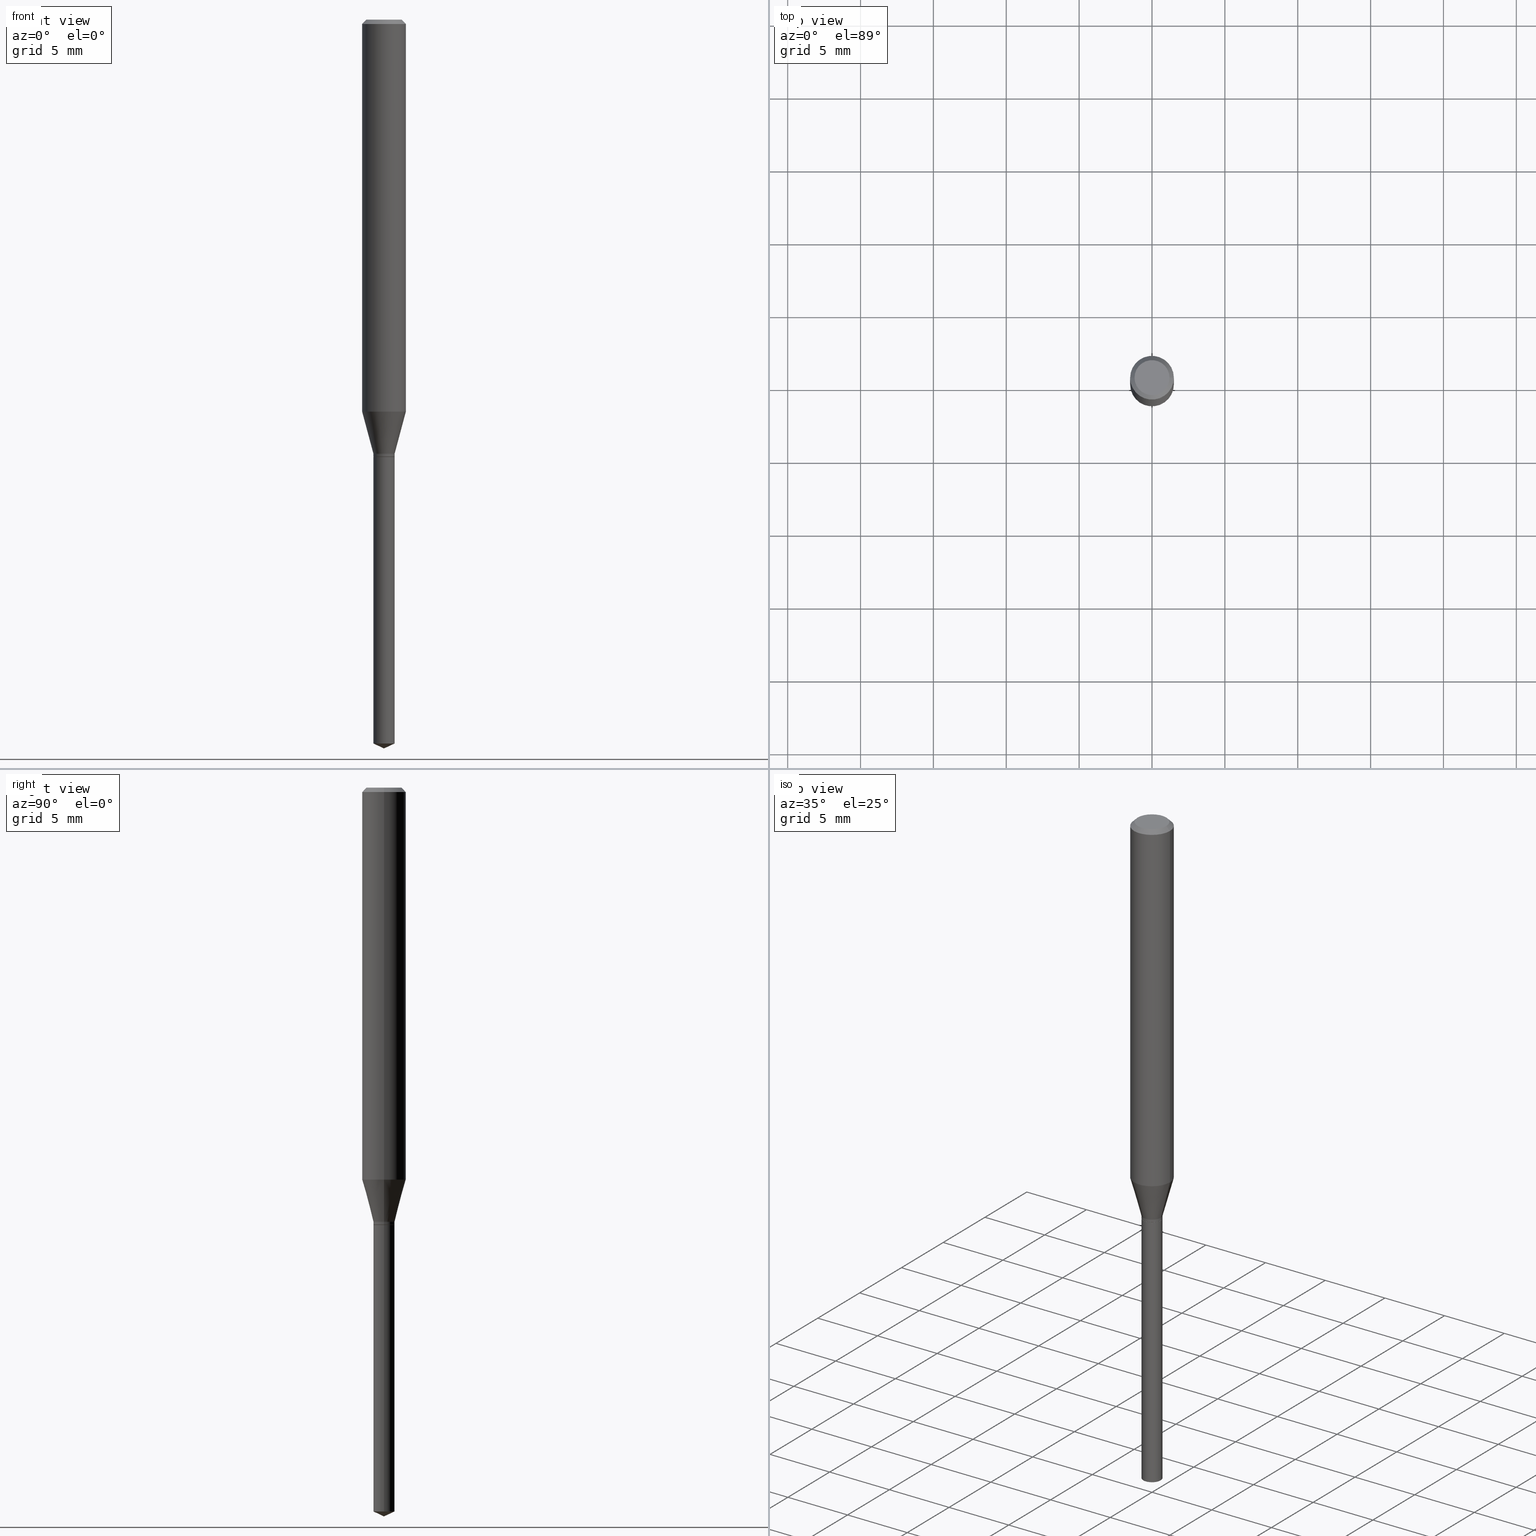
[diagram: canonical four-view strip — front | top / right | iso, engineering-drawing reading convention]
A machine part, canonical four-view strip (front | top / right | iso — engineering-drawing reading convention). The complete STEP part file that produces these views, byte-faithful:
ISO-10303-21;
HEADER;
FILE_DESCRIPTION (( 'STEP AP203' ),
    '1' );
FILE_NAME ('08348.STEP',
    '2024-04-24T14:30:05',
    ( '' ),
    ( '' ),
    'SwSTEP 2.0',
    'SolidWorks 2023',
    '' );
FILE_SCHEMA (( 'CONFIG_CONTROL_DESIGN' ));
ENDSEC;

DATA;
#1 = AXIS2_PLACEMENT_3D ( 'NONE', #105, #481, #332 ) ;
#2 = CYLINDRICAL_SURFACE ( 'NONE', #411, 0.02855000000000000593 ) ;
#3 = ORIENTED_EDGE ( 'NONE', *, *, #9, .T. ) ;
#4 = APPROVAL_ROLE ( '' ) ;
#5 = CARTESIAN_POINT ( 'NONE',  ( 2.888098660104664204E-31, -4.123439461173780263E-17, -0.01181000000000007218 ) ) ;
#6 = ORIENTED_EDGE ( 'NONE', *, *, #149, .F. ) ;
#7 = DIRECTION ( 'NONE',  ( 0.9063077870366522681, -4.853149677051413500E-15, 0.4226182617406944453 ) ) ;
#8 = ORIENTED_EDGE ( 'NONE', *, *, #225, .T. ) ;
#9 = EDGE_CURVE ( 'NONE', #285, #289, #73, .T. ) ;
#10 = DIRECTION ( 'NONE',  ( 1.000000000000000000, -6.982962677686259611E-15, 0.000000000000000000 ) ) ;
#11 = APPLICATION_CONTEXT ( 'configuration controlled 3d designs of mechanical parts and assemblies' ) ;
#12 = ORIENTED_EDGE ( 'NONE', *, *, #236, .F. ) ;
#13 = AXIS2_PLACEMENT_3D ( 'NONE', #381, #112, #45 ) ;
#14 =( GEOMETRIC_REPRESENTATION_CONTEXT ( 3 ) GLOBAL_UNCERTAINTY_ASSIGNED_CONTEXT ( ( #135 ) ) GLOBAL_UNIT_ASSIGNED_CONTEXT ( ( #145, #108, #447 ) ) REPRESENTATION_CONTEXT ( 'NONE', 'WORKASPACE' ) );
#15 = ORIENTED_EDGE ( 'NONE', *, *, #366, .F. ) ;
#16 = AXIS2_PLACEMENT_3D ( 'NONE', #408, #444, #331 ) ;
#17 = DIRECTION ( 'NONE',  ( 1.000000000000000000, -6.982962677686266711E-15, 4.876185090822587894E-29 ) ) ;
#18 = ORIENTED_EDGE ( 'NONE', *, *, #256, .F. ) ;
#19 = CARTESIAN_POINT ( 'NONE',  ( -0.02804999999999999508, -3.923577885422241876E-15, -1.181600000000000206 ) ) ;
#20 = ADVANCED_FACE ( 'NONE', ( #210 ), #358, .F. ) ;
#21 = ORIENTED_EDGE ( 'NONE', *, *, #333, .T. ) ;
#22 = EDGE_CURVE ( 'NONE', #282, #216, #187, .T. ) ;
#23 = ORIENTED_EDGE ( 'NONE', *, *, #22, .T. ) ;
#24 = DIRECTION ( 'NONE',  ( -0.7071067811865453523, 2.468850131082234184E-15, -0.7071067811865496822 ) ) ;
#25 = ORIENTED_EDGE ( 'NONE', *, *, #37, .T. ) ;
#26 = CC_DESIGN_PERSON_AND_ORGANIZATION_ASSIGNMENT ( #267, #328, ( #150 ) ) ;
#27 = CYLINDRICAL_SURFACE ( 'NONE', #287, 0.05905000000000006771 ) ;
#28 = AXIS2_PLACEMENT_3D ( 'NONE', #384, #153, #339 ) ;
#29 = EDGE_LOOP ( 'NONE', ( #23, #25, #399, #92 ) ) ;
#30 = CARTESIAN_POINT ( 'NONE',  ( 2.888343206985265437E-29, -4.123788609307639813E-15, -1.181100000000000039 ) ) ;
#31 = DIRECTION ( 'NONE',  ( 1.000000000000000000, -6.982962677686275388E-15, 0.000000000000000000 ) ) ;
#32 = PERSON_AND_ORGANIZATION ( #183, #417 ) ;
#33 = EDGE_CURVE ( 'NONE', #396, #177, #342, .T. ) ;
#34 = APPLICATION_CONTEXT ( 'configuration controlled 3d designs of mechanical parts and assemblies' ) ;
#35 = CARTESIAN_POINT ( 'NONE',  ( 4.815128079378533515E-29, -6.874726756182153211E-15, -1.968999999999999861 ) ) ;
#36 = CC_DESIGN_DATE_AND_TIME_ASSIGNMENT ( #482, #147, ( #440 ) ) ;
#37 = EDGE_CURVE ( 'NONE', #216, #285, #455, .T. ) ;
#38 = FACE_OUTER_BOUND ( 'NONE', #164, .T. ) ;
#39 = DIRECTION ( 'NONE',  ( 0.000000000000000000, 0.000000000000000000, 1.000000000000000000 ) ) ;
#40 = FACE_OUTER_BOUND ( 'NONE', #52, .T. ) ;
#41 = APPROVAL_ROLE ( '' ) ;
#42 = DIRECTION ( 'NONE',  ( 1.000000000000000000, -6.982962677686266711E-15, 0.000000000000000000 ) ) ;
#43 = ADVANCED_FACE ( 'NONE', ( #424 ), #334, .T. ) ;
#44 = CARTESIAN_POINT ( 'NONE',  ( -1.058011199339416791E-29, -9.778689497636769587E-15, -1.181599999999999984 ) ) ;
#45 = DIRECTION ( 'NONE',  ( 1.000000000000000000, -6.982962677686259611E-15, 0.000000000000000000 ) ) ;
#46 = CARTESIAN_POINT ( 'NONE',  ( 0.04724000000000000421, -3.852183633974369345E-16, -3.380025165621689721E-19 ) ) ;
#47 = CC_DESIGN_APPROVAL ( #136, ( #470 ) ) ;
#48 = DIRECTION ( 'NONE',  ( -2.445468806185136597E-29, 3.491481338843145583E-15, 1.000000000000000000 ) ) ;
#49 = ORIENTED_EDGE ( 'NONE', *, *, #37, .F. ) ;
#50 = ADVANCED_FACE ( 'NONE', ( #38 ), #221, .T. ) ;
#51 = VERTEX_POINT ( 'NONE', #35 ) ;
#52 = EDGE_LOOP ( 'NONE', ( #360, #278, #397 ) ) ;
#53 = MANIFOLD_SOLID_BREP ( 'Body-Move/Copy2[2]', #228 ) ;
#54 = CARTESIAN_POINT ( 'NONE',  ( 2.889565941388357678E-29, -4.125534349977061317E-15, -1.181600000000000206 ) ) ;
#55 = LINE ( 'NONE', #359, #383 ) ;
#56 = EDGE_CURVE ( 'NONE', #177, #396, #161, .T. ) ;
#57 = DIRECTION ( 'NONE',  ( -2.445468806185136597E-29, 3.491481338843145583E-15, 1.000000000000000000 ) ) ;
#58 = DIRECTION ( 'NONE',  ( 1.000000000000000000, -6.982962677686259611E-15, 0.000000000000000000 ) ) ;
#59 = EDGE_LOOP ( 'NONE', ( #21, #467, #141, #139 ) ) ;
#60 = DIRECTION ( 'NONE',  ( -2.445468806185136597E-29, 3.491481338843145583E-15, 1.000000000000000000 ) ) ;
#61 = VERTEX_POINT ( 'NONE', #178 ) ;
#62 = DIRECTION ( 'NONE',  ( -2.445468806185136597E-29, 3.491481338843145583E-15, 1.000000000000000000 ) ) ;
#63 = CARTESIAN_POINT ( 'NONE',  ( -0.02855000000000000593, -3.892647659403500739E-15, -1.173000000000000043 ) ) ;
#64 = VERTEX_POINT ( 'NONE', #330 ) ;
#65 = VECTOR ( 'NONE', #311, 39.37007874015748143 ) ;
#66 = CARTESIAN_POINT ( 'NONE',  ( -0.02855000000000000593, 2.028599510595086452E-16, -1.404355968267775820E-30 ) ) ;
#67 = VECTOR ( 'NONE', #431, 39.37007874015748143 ) ;
#68 = ADVANCED_FACE ( 'NONE', ( #409 ), #77, .T. ) ;
#69 = MECHANICAL_CONTEXT ( 'NONE', #34, 'mechanical' ) ;
#70 = CARTESIAN_POINT ( 'NONE',  ( 2.889565941388357678E-29, -4.125534349977061317E-15, -1.181600000000000206 ) ) ;
#71 = CALENDAR_DATE ( 2024, 24, 4 ) ;
#72 = EDGE_CURVE ( 'NONE', #51, #248, #81, .T. ) ;
#73 = CIRCLE ( 'NONE', #343, 0.05904999999999999832 ) ;
#74 = APPROVAL_DATE_TIME ( #109, #219 ) ;
#75 = DIRECTION ( 'NONE',  ( -2.445468806185136597E-29, 3.491481338843145583E-15, 1.000000000000000000 ) ) ;
#76 = CARTESIAN_POINT ( 'NONE',  ( -9.146317137672921654E-28, 1.305851684738629534E-13, 37.40107874015748024 ) ) ;
#77 = CONICAL_SURFACE ( 'NONE', #110, 84.42940631927518780, 1.134464013796319781 ) ;
#78 = CARTESIAN_POINT ( 'NONE',  ( 2.888098660104664204E-31, -4.123439461173780263E-17, -0.01181000000000007218 ) ) ;
#79 = VECTOR ( 'NONE', #449, 39.37007874015748143 ) ;
#80 = CARTESIAN_POINT ( 'NONE',  ( 8.265746106709734507E-48, -1.180129479067563789E-33, -3.380025165646692144E-19 ) ) ;
#81 = LINE ( 'NONE', #85, #458 ) ;
#82 = COORDINATED_UNIVERSAL_TIME_OFFSET ( 5, 0, .BEHIND. ) ;
#83 = APPROVAL ( #233, 'UNSPECIFIED' ) ;
#84 = FACE_OUTER_BOUND ( 'NONE', #244, .T. ) ;
#85 = CARTESIAN_POINT ( 'NONE',  ( 4.815128079378533515E-29, -6.874726756182153211E-15, -1.968999999999999861 ) ) ;
#86 = ADVANCED_BREP_SHAPE_REPRESENTATION ( '08348', ( #370, #53, #335 ), #14 ) ;
#87 = DIRECTION ( 'NONE',  ( 2.445468806185136597E-29, -3.491481338843145583E-15, -1.000000000000000000 ) ) ;
#88 = CIRCLE ( 'NONE', #365, 0.02804999999999999508 ) ;
#89 = PERSON_AND_ORGANIZATION ( #183, #417 ) ;
#90 = CARTESIAN_POINT ( 'NONE',  ( 0.05904999999999999832, -4.535783407291118600E-16, -0.01181000000000007218 ) ) ;
#91 = EDGE_LOOP ( 'NONE', ( #49, #439, #94, #404 ) ) ;
#92 = ORIENTED_EDGE ( 'NONE', *, *, #426, .F. ) ;
#93 = PLANE ( 'NONE',  #1 ) ;
#94 = ORIENTED_EDGE ( 'NONE', *, *, #426, .T. ) ;
#95 = CARTESIAN_POINT ( 'NONE',  ( 8.265746106709734507E-48, -1.180129479067563789E-33, -3.380025165646692144E-19 ) ) ;
#96 = CC_DESIGN_APPROVAL ( #83, ( #207 ) ) ;
#97 = DIRECTION ( 'NONE',  ( 1.000000000000000000, -6.982962677686264344E-15, 0.000000000000000000 ) ) ;
#98 = CARTESIAN_POINT ( 'NONE',  ( 2.590173187748429054E-29, -3.698080845080651736E-15, -1.059172450369149088 ) ) ;
#99 = CARTESIAN_POINT ( 'NONE',  ( 2.888098660104664204E-31, -4.123439461173780263E-17, -0.01181000000000007218 ) ) ;
#100 = CARTESIAN_POINT ( 'NONE',  ( -0.02855000000000000593, -3.906788158825816102E-15, -1.181100000000000039 ) ) ;
#101 = ORIENTED_EDGE ( 'NONE', *, *, #72, .T. ) ;
#102 = DIRECTION ( 'NONE',  ( -2.445468806185136597E-29, 3.491481338843145583E-15, 1.000000000000000000 ) ) ;
#103 = EDGE_LOOP ( 'NONE', ( #280, #390 ) ) ;
#104 = CIRCLE ( 'NONE', #217, 0.02854999999999999899 ) ;
#105 = CARTESIAN_POINT ( 'NONE',  ( 2.889565941388357678E-29, -4.125534349977061317E-15, -1.181600000000000206 ) ) ;
#106 = EDGE_CURVE ( 'NONE', #288, #123, #234, .T. ) ;
#107 = EDGE_CURVE ( 'NONE', #64, #177, #130, .T. ) ;
#108 =( NAMED_UNIT ( * ) PLANE_ANGLE_UNIT ( ) SI_UNIT ( $, .RADIAN. ) );
#109 = DATE_AND_TIME ( #71, #412 ) ;
#110 = AXIS2_PLACEMENT_3D ( 'NONE', #76, #376, #42 ) ;
#111 = FACE_OUTER_BOUND ( 'NONE', #428, .T. ) ;
#112 = DIRECTION ( 'NONE',  ( -2.445468806185136597E-29, 3.491481338843145583E-15, 1.000000000000000000 ) ) ;
#113 = ADVANCED_FACE ( 'NONE', ( #111 ), #314, .T. ) ;
#114 = SHAPE_DEFINITION_REPRESENTATION ( #344, #86 ) ;
#115 = CARTESIAN_POINT ( 'NONE',  ( 0.02854999999999999205, -7.027607957537443079E-15, -1.955686916359674843 ) ) ;
#116 = COORDINATED_UNIVERSAL_TIME_OFFSET ( 5, 0, .BEHIND. ) ;
#117 = DIRECTION ( 'NONE',  ( 1.000000000000000000, -6.982962677686266711E-15, 0.000000000000000000 ) ) ;
#118 = DATE_AND_TIME ( #308, #363 ) ;
#119 = ADVANCED_FACE ( 'NONE', ( #148 ), #420, .T. ) ;
#120 = DIRECTION ( 'NONE',  ( 1.000000000000000000, -6.982962677686275388E-15, 0.000000000000000000 ) ) ;
#121 = CARTESIAN_POINT ( 'NONE',  ( -0.05905000000000006771, 4.195754854663396409E-16, -2.904631170795525045E-30 ) ) ;
#122 = DIRECTION ( 'NONE',  ( 0.7071067811865453523, -7.319954787623248157E-15, -0.7071067811865496822 ) ) ;
#123 = VERTEX_POINT ( 'NONE', #226 ) ;
#124 = AXIS2_PLACEMENT_3D ( 'NONE', #205, #138, #389 ) ;
#125 = ORIENTED_EDGE ( 'NONE', *, *, #266, .T. ) ;
#126 = DIRECTION ( 'NONE',  ( 0.2588190451025214611, 1.565188264969621573E-15, 0.9659258262890682012 ) ) ;
#127 = ORIENTED_EDGE ( 'NONE', *, *, #357, .F. ) ;
#128 = DIRECTION ( 'NONE',  ( 1.000000000000000000, -6.982962677686264344E-15, 0.000000000000000000 ) ) ;
#129 = ORIENTED_EDGE ( 'NONE', *, *, #463, .F. ) ;
#130 = LINE ( 'NONE', #427, #67 ) ;
#131 = DIRECTION ( 'NONE',  ( -1.000000000000000000, 6.982962677686265922E-15, -4.876176775795935793E-29 ) ) ;
#132 = CARTESIAN_POINT ( 'NONE',  ( 2.889565941388357678E-29, -4.125534349977061317E-15, -1.181600000000000206 ) ) ;
#133 = LOCAL_TIME ( 10, 30, 5.000000000000000000, #82 ) ;
#134 = AXIS2_PLACEMENT_3D ( 'NONE', #322, #471, #310 ) ;
#135 = UNCERTAINTY_MEASURE_WITH_UNIT (LENGTH_MEASURE( 1.000000000000000082E-05 ), #145, 'distance_accuracy_value', 'NONE');
#136 = APPROVAL ( #276, 'UNSPECIFIED' ) ;
#137 = EDGE_LOOP ( 'NONE', ( #156, #312 ) ) ;
#138 = DIRECTION ( 'NONE',  ( -2.445468806185136597E-29, 3.491481338843145583E-15, 1.000000000000000000 ) ) ;
#139 = ORIENTED_EDGE ( 'NONE', *, *, #107, .F. ) ;
#140 = LINE ( 'NONE', #355, #174 ) ;
#141 = ORIENTED_EDGE ( 'NONE', *, *, #56, .F. ) ;
#142 = PERSON_AND_ORGANIZATION_ROLE ( 'creator' ) ;
#143 = AXIS2_PLACEMENT_3D ( 'NONE', #157, #454, #237 ) ;
#144 = ADVANCED_FACE ( 'NONE', ( #40 ), #485, .T. ) ;
#145 =( CONVERSION_BASED_UNIT ( 'INCH', #298 ) LENGTH_UNIT ( ) NAMED_UNIT ( #441 ) );
#146 = VECTOR ( 'NONE', #475, 39.37007874015748854 ) ;
#147 = DATE_TIME_ROLE ( 'creation_date' ) ;
#148 = FACE_OUTER_BOUND ( 'NONE', #59, .T. ) ;
#149 = EDGE_CURVE ( 'NONE', #457, #396, #274, .T. ) ;
#150 = PRODUCT ( '08348', '08348', '', ( #69 ) ) ;
#151 = DIRECTION ( 'NONE',  ( 1.000000000000000000, -6.982962677686266711E-15, 4.876185090822587894E-29 ) ) ;
#152 = DATE_TIME_ROLE ( 'classification_date' ) ;
#153 = DIRECTION ( 'NONE',  ( -2.445468806185136597E-29, 3.491481338843145583E-15, 1.000000000000000000 ) ) ;
#154 = ADVANCED_FACE ( 'NONE', ( #84 ), #375, .T. ) ;
#155 = CARTESIAN_POINT ( 'NONE',  ( 2.868534909655165192E-29, -4.095507610463009878E-15, -1.173000000000000043 ) ) ;
#156 = ORIENTED_EDGE ( 'NONE', *, *, #333, .F. ) ;
#157 = CARTESIAN_POINT ( 'NONE',  ( 2.868534909655165192E-29, -4.095507610463009878E-15, -1.173000000000000043 ) ) ;
#158 = ORIENTED_EDGE ( 'NONE', *, *, #329, .T. ) ;
#159 = DIRECTION ( 'NONE',  ( -2.445468806185136877E-29, 3.491481338843145188E-15, 1.000000000000000000 ) ) ;
#160 = CARTESIAN_POINT ( 'NONE',  ( 0.02855000000000000593, -4.294871194910953474E-15, -1.173000000000000043 ) ) ;
#161 = CIRCLE ( 'NONE', #473, 0.02855000000000000593 ) ;
#162 = AXIS2_PLACEMENT_3D ( 'NONE', #98, #465, #128 ) ;
#163 = AXIS2_PLACEMENT_3D ( 'NONE', #185, #483, #309 ) ;
#164 = EDGE_LOOP ( 'NONE', ( #12, #200, #158, #292 ) ) ;
#165 = DIRECTION ( 'NONE',  ( -2.445468806185136877E-29, 3.491481338843145188E-15, 1.000000000000000000 ) ) ;
#166 = EDGE_CURVE ( 'NONE', #212, #476, #206, .T. ) ;
#167 = EDGE_LOOP ( 'NONE', ( #8, #385, #18, #393 ) ) ;
#168 = DIRECTION ( 'NONE',  ( -0.2588190451025214611, 5.211531920934551042E-15, 0.9659258262890682012 ) ) ;
#169 = ORIENTED_EDGE ( 'NONE', *, *, #56, .T. ) ;
#170 = ADVANCED_FACE ( 'NONE', ( #382 ), #350, .T. ) ;
#171 = ORIENTED_EDGE ( 'NONE', *, *, #166, .F. ) ;
#172 = DIRECTION ( 'NONE',  ( -2.445468806185136877E-29, 3.491481338843145188E-15, 1.000000000000000000 ) ) ;
#173 = ORIENTED_EDGE ( 'NONE', *, *, #256, .T. ) ;
#174 = VECTOR ( 'NONE', #258, 39.37007874015748143 ) ;
#175 = CIRCLE ( 'NONE', #407, 0.02854999999999999899 ) ;
#176 = FACE_OUTER_BOUND ( 'NONE', #167, .T. ) ;
#177 = VERTEX_POINT ( 'NONE', #345 ) ;
#178 = CARTESIAN_POINT ( 'NONE',  ( -0.02854999999999999899, -5.274029410473772051E-15, -1.181600000000000206 ) ) ;
#179 = DIRECTION ( 'NONE',  ( 1.000000000000000000, -6.982962677686259611E-15, 0.000000000000000000 ) ) ;
#180 = CLOSED_SHELL ( 'NONE', ( #378, #144, #68, #50, #318 ) ) ;
#181 = APPLICATION_PROTOCOL_DEFINITION ( 'international standard', 'config_control_design', 1994, #34 ) ;
#182 = DIRECTION ( 'NONE',  ( -2.445468806185136597E-29, 3.491481338843145583E-15, 1.000000000000000000 ) ) ;
#183 = PERSON ( 'UNSPECIFIED', 'UNSPECIFIED', 'UNSPECIFIED', ('UNSPECIFIED'), ('UNSPECIFIED'), ('UNSPECIFIED') ) ;
#184 = CALENDAR_DATE ( 2024, 24, 4 ) ;
#185 = CARTESIAN_POINT ( 'NONE',  ( -9.146317137672921654E-28, 1.305851684738629534E-13, 37.40107874015748024 ) ) ;
#186 = AXIS2_PLACEMENT_3D ( 'NONE', #155, #410, #120 ) ;
#187 = CIRCLE ( 'NONE', #377, 0.05905000000000013710 ) ;
#188 = CIRCLE ( 'NONE', #461, 0.02854999999999999899 ) ;
#189 = DATE_AND_TIME ( #452, #133 ) ;
#190 = DIRECTION ( 'NONE',  ( 2.438088387897960049E-29, -3.491481338843145188E-15, -1.000000000000000000 ) ) ;
#191 = CARTESIAN_POINT ( 'NONE',  ( 4.782571348621985160E-29, -6.828244373089501061E-15, -1.955686916359674843 ) ) ;
#192 = PERSON_AND_ORGANIZATION ( #183, #417 ) ;
#193 = LOCAL_TIME ( 10, 30, 5.000000000000000000, #116 ) ;
#194 = DIRECTION ( 'NONE',  ( -1.000000000000000000, 6.982962677686266711E-15, 0.000000000000000000 ) ) ;
#195 = VECTOR ( 'NONE', #159, 39.37007874015748143 ) ;
#196 = ORIENTED_EDGE ( 'NONE', *, *, #22, .F. ) ;
#197 = CIRCLE ( 'NONE', #186, 0.02855000000000000593 ) ;
#198 = DESIGN_CONTEXT ( 'detailed design', #11, 'design' ) ;
#199 = DIRECTION ( 'NONE',  ( -2.445468806185136597E-29, 3.491481338843145583E-15, 1.000000000000000000 ) ) ;
#200 = ORIENTED_EDGE ( 'NONE', *, *, #357, .T. ) ;
#201 = DIRECTION ( 'NONE',  ( -2.445468806185136597E-29, 3.491481338843145583E-15, 1.000000000000000000 ) ) ;
#202 = EDGE_LOOP ( 'NONE', ( #173, #354 ) ) ;
#203 = DIRECTION ( 'NONE',  ( -2.445468806185136597E-29, 3.491481338843145583E-15, 1.000000000000000000 ) ) ;
#204 = DIRECTION ( 'NONE',  ( -2.445468806185136597E-29, 3.491481338843145583E-15, 1.000000000000000000 ) ) ;
#205 = CARTESIAN_POINT ( 'NONE',  ( 0.000000000000000000, 0.000000000000000000, 0.000000000000000000 ) ) ;
#206 = CIRCLE ( 'NONE', #279, 0.04724000000000000421 ) ;
#207 = PRODUCT_DEFINITION_FORMATION_WITH_SPECIFIED_SOURCE ( 'ANY', '', #150, .NOT_KNOWN. ) ;
#208 = CARTESIAN_POINT ( 'NONE',  ( 4.132873053354867254E-48, -5.900647395337818946E-34, -1.690012582823346072E-19 ) ) ;
#209 = LINE ( 'NONE', #215, #337 ) ;
#210 = FACE_OUTER_BOUND ( 'NONE', #103, .T. ) ;
#211 = DIRECTION ( 'NONE',  ( 1.000000000000000000, -6.982962677686266711E-15, 4.876176775795936353E-29 ) ) ;
#212 = VERTEX_POINT ( 'NONE', #46 ) ;
#213 = EDGE_CURVE ( 'NONE', #61, #321, #416, .T. ) ;
#214 = DIRECTION ( 'NONE',  ( 1.000000000000000000, -6.982962677686266711E-15, 0.000000000000000000 ) ) ;
#215 = CARTESIAN_POINT ( 'NONE',  ( 0.02854999999999999899, -4.324897934425003335E-15, -1.181599999999999984 ) ) ;
#216 = VERTEX_POINT ( 'NONE', #453 ) ;
#217 = AXIS2_PLACEMENT_3D ( 'NONE', #191, #245, #303 ) ;
#218 = CIRCLE ( 'NONE', #162, 0.05905000000000013710 ) ;
#219 = APPROVAL ( #477, 'UNSPECIFIED' ) ;
#220 = AXIS2_PLACEMENT_3D ( 'NONE', #95, #102, #17 ) ;
#221 = CYLINDRICAL_SURFACE ( 'NONE', #232, 0.02854999999999999899 ) ;
#222 = DIRECTION ( 'NONE',  ( -2.445468806185136877E-29, 3.491481338843145188E-15, 1.000000000000000000 ) ) ;
#223 = PERSON_AND_ORGANIZATION ( #183, #417 ) ;
#224 = CARTESIAN_POINT ( 'NONE',  ( 0.000000000000000000, 0.000000000000000000, 0.000000000000000000 ) ) ;
#225 = EDGE_CURVE ( 'NONE', #248, #317, #104, .T. ) ;
#226 = CARTESIAN_POINT ( 'NONE',  ( -0.02855000000000000593, -3.906788158825816102E-15, -1.173000000000000043 ) ) ;
#227 = AXIS2_PLACEMENT_3D ( 'NONE', #251, #472, #468 ) ;
#228 = CLOSED_SHELL ( 'NONE', ( #119, #154, #400, #371, #338, #231, #170, #269, #113, #20, #488, #43 ) ) ;
#229 = PERSON_AND_ORGANIZATION ( #183, #417 ) ;
#230 = CC_DESIGN_DATE_AND_TIME_ASSIGNMENT ( #189, #152, ( #470 ) ) ;
#231 = ADVANCED_FACE ( 'NONE', ( #239 ), #2, .T. ) ;
#232 = AXIS2_PLACEMENT_3D ( 'NONE', #293, #182, #361 ) ;
#233 = APPROVAL_STATUS ( 'not_yet_approved' ) ;
#234 = CIRCLE ( 'NONE', #296, 0.02855000000000000593 ) ;
#235 = CARTESIAN_POINT ( 'NONE',  ( 0.05905000000000013710, -4.110424791198027445E-15, -1.059172450369149088 ) ) ;
#236 = EDGE_CURVE ( 'NONE', #317, #61, #386, .T. ) ;
#237 = DIRECTION ( 'NONE',  ( 1.000000000000000000, -6.982962677686275388E-15, 0.000000000000000000 ) ) ;
#238 = PERSON_AND_ORGANIZATION ( #183, #417 ) ;
#239 = FACE_OUTER_BOUND ( 'NONE', #254, .T. ) ;
#240 = COORDINATED_UNIVERSAL_TIME_OFFSET ( 5, 0, .BEHIND. ) ;
#241 = VECTOR ( 'NONE', #168, 39.37007874015747433 ) ;
#242 = DIRECTION ( 'NONE',  ( -2.445468806185136597E-29, 3.491481338843145583E-15, 1.000000000000000000 ) ) ;
#243 = CIRCLE ( 'NONE', #299, 0.05904999999999999832 ) ;
#244 = EDGE_LOOP ( 'NONE', ( #171, #356, #327, #15 ) ) ;
#245 = DIRECTION ( 'NONE',  ( -2.445468806185136597E-29, 3.491481338843145583E-15, 1.000000000000000000 ) ) ;
#246 = EDGE_LOOP ( 'NONE', ( #433, #388, #196, #435 ) ) ;
#247 = EDGE_CURVE ( 'NONE', #212, #289, #348, .T. ) ;
#248 = VERTEX_POINT ( 'NONE', #115 ) ;
#249 = DIRECTION ( 'NONE',  ( -2.445468806185136597E-29, 3.491481338843145583E-15, 1.000000000000000000 ) ) ;
#250 = ORIENTED_EDGE ( 'NONE', *, *, #405, .F. ) ;
#251 = CARTESIAN_POINT ( 'NONE',  ( 2.868534909655165192E-29, -4.095507610463009878E-15, -1.173000000000000043 ) ) ;
#252 = AXIS2_PLACEMENT_3D ( 'NONE', #132, #286, #58 ) ;
#253 = ORIENTED_EDGE ( 'NONE', *, *, #346, .F. ) ;
#254 = EDGE_LOOP ( 'NONE', ( #474, #347, #315, #324 ) ) ;
#255 = DIRECTION ( 'NONE',  ( 1.000000000000000000, -6.982962677686259611E-15, 0.000000000000000000 ) ) ;
#256 = EDGE_CURVE ( 'NONE', #321, #61, #175, .T. ) ;
#257 = EDGE_LOOP ( 'NONE', ( #295, #101, #127 ) ) ;
#258 = DIRECTION ( 'NONE',  ( -2.445468806185136877E-29, 3.491481338843145188E-15, 1.000000000000000000 ) ) ;
#259 = ORIENTED_EDGE ( 'NONE', *, *, #479, .T. ) ;
#260 = CARTESIAN_POINT ( 'NONE',  ( -0.04724000000000000421, 3.504923541997677355E-16, -3.380025165670481712E-19 ) ) ;
#261 = ORIENTED_EDGE ( 'NONE', *, *, #247, .F. ) ;
#262 = AXIS2_PLACEMENT_3D ( 'NONE', #44, #190, #487 ) ;
#263 = CC_DESIGN_SECURITY_CLASSIFICATION ( #470, ( #207 ) ) ;
#264 = VECTOR ( 'NONE', #24, 39.37007874015748143 ) ;
#265 = DIRECTION ( 'NONE',  ( 1.000000000000000000, 0.000000000000000000, 0.000000000000000000 ) ) ;
#266 = EDGE_CURVE ( 'NONE', #123, #288, #197, .T. ) ;
#267 = PERSON_AND_ORGANIZATION ( #183, #417 ) ;
#268 = VECTOR ( 'NONE', #222, 39.37007874015748143 ) ;
#269 = ADVANCED_FACE ( 'NONE', ( #340 ), #301, .T. ) ;
#270 =( LENGTH_UNIT ( ) NAMED_UNIT ( * ) SI_UNIT ( $, .METRE. ) );
#271 = DIRECTION ( 'NONE',  ( 1.000000000000000000, -6.982962677686266711E-15, 4.876176775795935793E-29 ) ) ;
#272 = APPROVAL_PERSON_ORGANIZATION ( #89, #136, #4 ) ;
#273 = PRODUCT_RELATED_PRODUCT_CATEGORY ( 'detail', '', ( #150 ) ) ;
#274 = LINE ( 'NONE', #413, #79 ) ;
#275 = CARTESIAN_POINT ( 'NONE',  ( -0.02854999999999999205, -6.625384422029991923E-15, -1.955686916359674843 ) ) ;
#276 = APPROVAL_STATUS ( 'not_yet_approved' ) ;
#277 = CARTESIAN_POINT ( 'NONE',  ( 2.889565941388357678E-29, -4.125534349977061317E-15, -1.181600000000000206 ) ) ;
#278 = ORIENTED_EDGE ( 'NONE', *, *, #445, .T. ) ;
#279 = AXIS2_PLACEMENT_3D ( 'NONE', #80, #199, #151 ) ;
#280 = ORIENTED_EDGE ( 'NONE', *, *, #346, .T. ) ;
#281 = FACE_OUTER_BOUND ( 'NONE', #137, .T. ) ;
#282 = VERTEX_POINT ( 'NONE', #235 ) ;
#283 = DIRECTION ( 'NONE',  ( 1.000000000000000000, -6.982962677686259611E-15, 0.000000000000000000 ) ) ;
#284 = ORIENTED_EDGE ( 'NONE', *, *, #107, .T. ) ;
#285 = VERTEX_POINT ( 'NONE', #306 ) ;
#286 = DIRECTION ( 'NONE',  ( -2.445468806185136597E-29, 3.491481338843145583E-15, 1.000000000000000000 ) ) ;
#287 = AXIS2_PLACEMENT_3D ( 'NONE', #323, #60, #211 ) ;
#288 = VERTEX_POINT ( 'NONE', #421 ) ;
#289 = VERTEX_POINT ( 'NONE', #90 ) ;
#290 = CC_DESIGN_PERSON_AND_ORGANIZATION_ASSIGNMENT ( #229, #142, ( #440 ) ) ;
#291 = LINE ( 'NONE', #294, #146 ) ;
#292 = ORIENTED_EDGE ( 'NONE', *, *, #213, .F. ) ;
#293 = CARTESIAN_POINT ( 'NONE',  ( 2.889565941388357118E-29, -4.125534349977060528E-15, -1.181599999999999984 ) ) ;
#294 = CARTESIAN_POINT ( 'NONE',  ( 4.815128079378533515E-29, -6.874726756182153211E-15, -1.968999999999999861 ) ) ;
#295 = ORIENTED_EDGE ( 'NONE', *, *, #445, .F. ) ;
#296 = AXIS2_PLACEMENT_3D ( 'NONE', #423, #203, #349 ) ;
#297 = EDGE_CURVE ( 'NONE', #289, #285, #243, .T. ) ;
#298 = LENGTH_MEASURE_WITH_UNIT ( LENGTH_MEASURE( 0.02539999999999999897 ), #270 );
#299 = AXIS2_PLACEMENT_3D ( 'NONE', #78, #48, #117 ) ;
#300 = SECURITY_CLASSIFICATION_LEVEL ( 'unclassified' ) ;
#301 = CYLINDRICAL_SURFACE ( 'NONE', #28, 0.05905000000000006771 ) ;
#302 = PERSON_AND_ORGANIZATION_ROLE ( 'creator' ) ;
#303 = DIRECTION ( 'NONE',  ( 1.000000000000000000, -6.982962677686259611E-15, 0.000000000000000000 ) ) ;
#304 = AXIS2_PLACEMENT_3D ( 'NONE', #462, #392, #326 ) ;
#305 = PERSON_AND_ORGANIZATION ( #183, #417 ) ;
#306 = CARTESIAN_POINT ( 'NONE',  ( -0.05904999999999999832, -1.450082134379854451E-15, -0.01181000000000007218 ) ) ;
#307 = CC_DESIGN_PERSON_AND_ORGANIZATION_ASSIGNMENT ( #305, #419, ( #470 ) ) ;
#308 = CALENDAR_DATE ( 2024, 24, 4 ) ;
#309 = DIRECTION ( 'NONE',  ( 1.000000000000000000, -6.982962677686266711E-15, 0.000000000000000000 ) ) ;
#310 = DIRECTION ( 'NONE',  ( 1.000000000000000000, -6.982962677686275388E-15, 0.000000000000000000 ) ) ;
#311 = DIRECTION ( 'NONE',  ( -2.445468806185136877E-29, 3.491481338843145188E-15, 1.000000000000000000 ) ) ;
#312 = ORIENTED_EDGE ( 'NONE', *, *, #391, .F. ) ;
#313 = CARTESIAN_POINT ( 'NONE',  ( 0.02854999999999999899, -4.324897934425004124E-15, -1.181600000000000206 ) ) ;
#314 = CONICAL_SURFACE ( 'NONE', #16, 0.05904999999999999832, 0.7853981633974452814 ) ;
#315 = ORIENTED_EDGE ( 'NONE', *, *, #448, .T. ) ;
#316 = CARTESIAN_POINT ( 'NONE',  ( 2.889565941388357678E-29, -4.125534349977061317E-15, -1.181600000000000206 ) ) ;
#317 = VERTEX_POINT ( 'NONE', #275 ) ;
#318 = ADVANCED_FACE ( 'NONE', ( #380 ), #415, .F. ) ;
#319 = DIRECTION ( 'NONE',  ( 2.438088387897960049E-29, -3.491481338843145188E-15, -1.000000000000000000 ) ) ;
#320 = DIRECTION ( 'NONE',  ( -2.445468806185136597E-29, 3.491481338843145583E-15, 1.000000000000000000 ) ) ;
#321 = VERTEX_POINT ( 'NONE', #313 ) ;
#322 = CARTESIAN_POINT ( 'NONE',  ( 2.888343206985265437E-29, -4.123788609307639813E-15, -1.181100000000000039 ) ) ;
#323 = CARTESIAN_POINT ( 'NONE',  ( 0.000000000000000000, 0.000000000000000000, 0.000000000000000000 ) ) ;
#324 = ORIENTED_EDGE ( 'NONE', *, *, #266, .F. ) ;
#325 = AXIS2_PLACEMENT_3D ( 'NONE', #54, #204, #351 ) ;
#326 = DIRECTION ( 'NONE',  ( 1.000000000000000000, -6.982962677686259611E-15, 0.000000000000000000 ) ) ;
#327 = ORIENTED_EDGE ( 'NONE', *, *, #297, .T. ) ;
#328 = PERSON_AND_ORGANIZATION_ROLE ( 'design_owner' ) ;
#329 = EDGE_CURVE ( 'NONE', #248, #321, #209, .T. ) ;
#330 = CARTESIAN_POINT ( 'NONE',  ( 0.02804999999999999508, -4.321406453086161117E-15, -1.181600000000000206 ) ) ;
#331 = DIRECTION ( 'NONE',  ( -1.000000000000000000, 6.982962677686266711E-15, 0.000000000000000000 ) ) ;
#332 = DIRECTION ( 'NONE',  ( 1.000000000000000000, -6.982962677686265922E-15, 4.876176775795935793E-29 ) ) ;
#333 = EDGE_CURVE ( 'NONE', #64, #457, #88, .T. ) ;
#334 = CONICAL_SURFACE ( 'NONE', #325, 0.02804999999999999508, 0.7853981633974227439 ) ;
#335 = AXIS2_PLACEMENT_3D ( 'NONE', #224, #39, #265 ) ;
#336 = AXIS2_PLACEMENT_3D ( 'NONE', #208, #319, #131 ) ;
#337 = VECTOR ( 'NONE', #165, 39.37007874015748143 ) ;
#338 = ADVANCED_FACE ( 'NONE', ( #425 ), #436, .T. ) ;
#339 = DIRECTION ( 'NONE',  ( 1.000000000000000000, -6.982962677686266711E-15, 4.876176775795936353E-29 ) ) ;
#340 = FACE_OUTER_BOUND ( 'NONE', #91, .T. ) ;
#341 = APPROVAL_PERSON_ORGANIZATION ( #223, #219, #369 ) ;
#342 = CIRCLE ( 'NONE', #134, 0.02855000000000000593 ) ;
#343 = AXIS2_PLACEMENT_3D ( 'NONE', #99, #57, #214 ) ;
#344 = PRODUCT_DEFINITION_SHAPE ( 'NONE', 'NONE',  #440 ) ;
#345 = CARTESIAN_POINT ( 'NONE',  ( 0.02855000000000000593, -4.323152193755583409E-15, -1.181100000000000039 ) ) ;
#346 = EDGE_CURVE ( 'NONE', #476, #212, #379, .T. ) ;
#347 = ORIENTED_EDGE ( 'NONE', *, *, #33, .T. ) ;
#348 = LINE ( 'NONE', #456, #401 ) ;
#349 = DIRECTION ( 'NONE',  ( 1.000000000000000000, -6.982962677686275388E-15, 0.000000000000000000 ) ) ;
#350 = CONICAL_SURFACE ( 'NONE', #143, 0.02855000000000000593, 0.2617993877991501295 ) ;
#351 = DIRECTION ( 'NONE',  ( 1.000000000000000000, -6.982962677686259611E-15, 0.000000000000000000 ) ) ;
#352 = CARTESIAN_POINT ( 'NONE',  ( -0.05904999999999999832, 3.711095515056362547E-16, -0.01181000000000007218 ) ) ;
#353 = AXIS2_PLACEMENT_3D ( 'NONE', #5, #87, #194 ) ;
#354 = ORIENTED_EDGE ( 'NONE', *, *, #213, .T. ) ;
#355 = CARTESIAN_POINT ( 'NONE',  ( 0.02855000000000000593, -1.993635844479429552E-16, 1.392148469489739965E-30 ) ) ;
#356 = ORIENTED_EDGE ( 'NONE', *, *, #247, .T. ) ;
#357 = EDGE_CURVE ( 'NONE', #317, #248, #188, .T. ) ;
#358 = PLANE ( 'NONE',  #336 ) ;
#359 = CARTESIAN_POINT ( 'NONE',  ( 0.05905000000000006771, -4.123439461173745257E-16, 2.879382386107503723E-30 ) ) ;
#360 = ORIENTED_EDGE ( 'NONE', *, *, #72, .F. ) ;
#361 = DIRECTION ( 'NONE',  ( 1.000000000000000000, -6.982962677686259611E-15, 0.000000000000000000 ) ) ;
#362 = LINE ( 'NONE', #352, #264 ) ;
#363 = LOCAL_TIME ( 10, 30, 5.000000000000000000, #240 ) ;
#364 = ORIENTED_EDGE ( 'NONE', *, *, #33, .F. ) ;
#365 = AXIS2_PLACEMENT_3D ( 'NONE', #316, #320, #283 ) ;
#366 = EDGE_CURVE ( 'NONE', #476, #285, #362, .T. ) ;
#367 = LINE ( 'NONE', #160, #459 ) ;
#368 = DIRECTION ( 'NONE',  ( -2.445468806185136597E-29, 3.491481338843145583E-15, 1.000000000000000000 ) ) ;
#369 = APPROVAL_ROLE ( '' ) ;
#370 = MANIFOLD_SOLID_BREP ( 'Body-Move/Copy2[1]', #180 ) ;
#371 = ADVANCED_FACE ( 'NONE', ( #398 ), #442, .T. ) ;
#372 = APPLICATION_PROTOCOL_DEFINITION ( 'international standard', 'config_control_design', 1994, #11 ) ;
#373 = COORDINATED_UNIVERSAL_TIME_OFFSET ( 5, 0, .BEHIND. ) ;
#374 = CALENDAR_DATE ( 2024, 24, 4 ) ;
#375 = CONICAL_SURFACE ( 'NONE', #353, 0.05904999999999999832, 0.7853981633974452814 ) ;
#376 = DIRECTION ( 'NONE',  ( -2.445468806185136597E-29, 3.491481338843145583E-15, 1.000000000000000000 ) ) ;
#377 = AXIS2_PLACEMENT_3D ( 'NONE', #460, #62, #97 ) ;
#378 = ADVANCED_FACE ( 'NONE', ( #176 ), #429, .T. ) ;
#379 = CIRCLE ( 'NONE', #220, 0.04724000000000000421 ) ;
#380 = FACE_OUTER_BOUND ( 'NONE', #202, .T. ) ;
#381 = CARTESIAN_POINT ( 'NONE',  ( 2.889565941388357678E-29, -4.125534349977061317E-15, -1.181600000000000206 ) ) ;
#382 = FACE_OUTER_BOUND ( 'NONE', #466, .T. ) ;
#383 = VECTOR ( 'NONE', #172, 39.37007874015748143 ) ;
#384 = CARTESIAN_POINT ( 'NONE',  ( 0.000000000000000000, 0.000000000000000000, 0.000000000000000000 ) ) ;
#385 = ORIENTED_EDGE ( 'NONE', *, *, #236, .T. ) ;
#386 = LINE ( 'NONE', #451, #65 ) ;
#387 = ORIENTED_EDGE ( 'NONE', *, *, #366, .T. ) ;
#388 = ORIENTED_EDGE ( 'NONE', *, *, #463, .T. ) ;
#389 = DIRECTION ( 'NONE',  ( 1.000000000000000000, -6.982962677686266711E-15, 4.876176775795935793E-29 ) ) ;
#390 = ORIENTED_EDGE ( 'NONE', *, *, #166, .T. ) ;
#391 = EDGE_CURVE ( 'NONE', #457, #64, #446, .T. ) ;
#392 = DIRECTION ( 'NONE',  ( -2.445468806185136597E-29, 3.491481338843145583E-15, 1.000000000000000000 ) ) ;
#393 = ORIENTED_EDGE ( 'NONE', *, *, #329, .F. ) ;
#394 = CC_DESIGN_PERSON_AND_ORGANIZATION_ASSIGNMENT ( #192, #414, ( #207 ) ) ;
#395 = FACE_OUTER_BOUND ( 'NONE', #29, .T. ) ;
#396 = VERTEX_POINT ( 'NONE', #100 ) ;
#397 = ORIENTED_EDGE ( 'NONE', *, *, #225, .F. ) ;
#398 = FACE_OUTER_BOUND ( 'NONE', #246, .T. ) ;
#399 = ORIENTED_EDGE ( 'NONE', *, *, #297, .F. ) ;
#400 = ADVANCED_FACE ( 'NONE', ( #395 ), #27, .T. ) ;
#401 = VECTOR ( 'NONE', #122, 39.37007874015748143 ) ;
#402 = LINE ( 'NONE', #66, #268 ) ;
#403 = LOCAL_TIME ( 10, 30, 5.000000000000000000, #373 ) ;
#404 = ORIENTED_EDGE ( 'NONE', *, *, #9, .F. ) ;
#405 = EDGE_CURVE ( 'NONE', #216, #282, #218, .T. ) ;
#406 = COORDINATED_UNIVERSAL_TIME_OFFSET ( 5, 0, .BEHIND. ) ;
#407 = AXIS2_PLACEMENT_3D ( 'NONE', #277, #201, #10 ) ;
#408 = CARTESIAN_POINT ( 'NONE',  ( 2.888098660104664204E-31, -4.123439461173780263E-17, -0.01181000000000007218 ) ) ;
#409 = FACE_OUTER_BOUND ( 'NONE', #257, .T. ) ;
#410 = DIRECTION ( 'NONE',  ( -2.445468806185136597E-29, 3.491481338843145583E-15, 1.000000000000000000 ) ) ;
#411 = AXIS2_PLACEMENT_3D ( 'NONE', #490, #242, #271 ) ;
#412 = LOCAL_TIME ( 10, 30, 5.000000000000000000, #406 ) ;
#413 = CARTESIAN_POINT ( 'NONE',  ( -0.02804999999999999508, -3.926227112596353077E-15, -1.181600000000000206 ) ) ;
#414 = PERSON_AND_ORGANIZATION_ROLE ( 'design_supplier' ) ;
#415 = PLANE ( 'NONE',  #262 ) ;
#416 = CIRCLE ( 'NONE', #13, 0.02854999999999999899 ) ;
#417 = ORGANIZATION ( 'UNSPECIFIED', 'UNSPECIFIED', '' ) ;
#418 = EDGE_LOOP ( 'NONE', ( #6, #464, #284, #364 ) ) ;
#419 = PERSON_AND_ORGANIZATION_ROLE ( 'classification_officer' ) ;
#420 = CONICAL_SURFACE ( 'NONE', #443, 0.02804999999999999508, 0.7853981633974227439 ) ;
#421 = CARTESIAN_POINT ( 'NONE',  ( 0.02855000000000000593, -4.294871194910953474E-15, -1.173000000000000043 ) ) ;
#422 = ORIENTED_EDGE ( 'NONE', *, *, #480, .T. ) ;
#423 = CARTESIAN_POINT ( 'NONE',  ( 2.868534909655165192E-29, -4.095507610463009878E-15, -1.173000000000000043 ) ) ;
#424 = FACE_OUTER_BOUND ( 'NONE', #418, .T. ) ;
#425 = FACE_OUTER_BOUND ( 'NONE', #437, .T. ) ;
#426 = EDGE_CURVE ( 'NONE', #282, #289, #55, .T. ) ;
#427 = CARTESIAN_POINT ( 'NONE',  ( 0.02804999999999999508, -4.321406453086161117E-15, -1.181600000000000206 ) ) ;
#428 = EDGE_LOOP ( 'NONE', ( #261, #253, #387, #3 ) ) ;
#429 = CYLINDRICAL_SURFACE ( 'NONE', #304, 0.02854999999999999899 ) ;
#430 = ORIENTED_EDGE ( 'NONE', *, *, #448, .F. ) ;
#431 = DIRECTION ( 'NONE',  ( 0.7071067811865294761, -2.468850131082068128E-15, 0.7071067811865655584 ) ) ;
#432 = CC_DESIGN_PERSON_AND_ORGANIZATION_ASSIGNMENT ( #238, #302, ( #207 ) ) ;
#433 = ORIENTED_EDGE ( 'NONE', *, *, #106, .T. ) ;
#434 = CARTESIAN_POINT ( 'NONE',  ( 4.782571348621985160E-29, -6.828244373089501061E-15, -1.955686916359674843 ) ) ;
#435 = ORIENTED_EDGE ( 'NONE', *, *, #480, .F. ) ;
#436 = CYLINDRICAL_SURFACE ( 'NONE', #124, 0.02855000000000000593 ) ;
#437 = EDGE_LOOP ( 'NONE', ( #169, #259, #469, #430 ) ) ;
#438 = LINE ( 'NONE', #63, #241 ) ;
#439 = ORIENTED_EDGE ( 'NONE', *, *, #405, .T. ) ;
#440 = PRODUCT_DEFINITION ( 'UNKNOWN', '', #207, #198 ) ;
#441 = DIMENSIONAL_EXPONENTS ( 1.000000000000000000, 0.000000000000000000, 0.000000000000000000, 0.000000000000000000, 0.000000000000000000, 0.000000000000000000, 0.000000000000000000 ) ;
#442 = CONICAL_SURFACE ( 'NONE', #227, 0.02855000000000000593, 0.2617993877991501295 ) ;
#443 = AXIS2_PLACEMENT_3D ( 'NONE', #70, #75, #179 ) ;
#444 = DIRECTION ( 'NONE',  ( 2.445468806185136597E-29, -3.491481338843145583E-15, -1.000000000000000000 ) ) ;
#445 = EDGE_CURVE ( 'NONE', #51, #317, #291, .T. ) ;
#446 = CIRCLE ( 'NONE', #252, 0.02804999999999999508 ) ;
#447 =( NAMED_UNIT ( * ) SI_UNIT ( $, .STERADIAN. ) SOLID_ANGLE_UNIT ( ) );
#448 = EDGE_CURVE ( 'NONE', #177, #288, #140, .T. ) ;
#449 = DIRECTION ( 'NONE',  ( -0.7071067811865294761, 7.493145998870289474E-15, 0.7071067811865655584 ) ) ;
#450 = DATE_AND_TIME ( #374, #193 ) ;
#451 = CARTESIAN_POINT ( 'NONE',  ( -0.02854999999999999899, -3.922674398917552179E-15, -1.181599999999999984 ) ) ;
#452 = CALENDAR_DATE ( 2024, 24, 4 ) ;
#453 = CARTESIAN_POINT ( 'NONE',  ( -0.05905000000000013710, -3.278505359614311455E-15, -1.059172450369149088 ) ) ;
#454 = DIRECTION ( 'NONE',  ( -2.445468806185136597E-29, 3.491481338843145583E-15, 1.000000000000000000 ) ) ;
#455 = LINE ( 'NONE', #121, #195 ) ;
#456 = CARTESIAN_POINT ( 'NONE',  ( 0.05904999999999999832, -4.463468013801466955E-16, -0.01181000000000007218 ) ) ;
#457 = VERTEX_POINT ( 'NONE', #19 ) ;
#458 = VECTOR ( 'NONE', #7, 39.37007874015748854 ) ;
#459 = VECTOR ( 'NONE', #126, 39.37007874015747433 ) ;
#460 = CARTESIAN_POINT ( 'NONE',  ( 2.590173187748429054E-29, -3.698080845080651736E-15, -1.059172450369149088 ) ) ;
#461 = AXIS2_PLACEMENT_3D ( 'NONE', #434, #249, #255 ) ;
#462 = CARTESIAN_POINT ( 'NONE',  ( 2.889565941388357118E-29, -4.125534349977060528E-15, -1.181599999999999984 ) ) ;
#463 = EDGE_CURVE ( 'NONE', #123, #216, #438, .T. ) ;
#464 = ORIENTED_EDGE ( 'NONE', *, *, #391, .T. ) ;
#465 = DIRECTION ( 'NONE',  ( -2.445468806185136597E-29, 3.491481338843145583E-15, 1.000000000000000000 ) ) ;
#466 = EDGE_LOOP ( 'NONE', ( #129, #125, #422, #250 ) ) ;
#467 = ORIENTED_EDGE ( 'NONE', *, *, #149, .T. ) ;
#468 = DIRECTION ( 'NONE',  ( 1.000000000000000000, -6.982962677686275388E-15, 0.000000000000000000 ) ) ;
#469 = ORIENTED_EDGE ( 'NONE', *, *, #106, .F. ) ;
#470 = SECURITY_CLASSIFICATION ( '', '', #300 ) ;
#471 = DIRECTION ( 'NONE',  ( -2.445468806185136597E-29, 3.491481338843145583E-15, 1.000000000000000000 ) ) ;
#472 = DIRECTION ( 'NONE',  ( -2.445468806185136597E-29, 3.491481338843145583E-15, 1.000000000000000000 ) ) ;
#473 = AXIS2_PLACEMENT_3D ( 'NONE', #30, #368, #31 ) ;
#474 = ORIENTED_EDGE ( 'NONE', *, *, #479, .F. ) ;
#475 = DIRECTION ( 'NONE',  ( -0.9063077870366522681, 7.915267918739014631E-15, 0.4226182617406944453 ) ) ;
#476 = VERTEX_POINT ( 'NONE', #260 ) ;
#477 = APPROVAL_STATUS ( 'not_yet_approved' ) ;
#478 = CC_DESIGN_APPROVAL ( #219, ( #440 ) ) ;
#479 = EDGE_CURVE ( 'NONE', #396, #123, #402, .T. ) ;
#480 = EDGE_CURVE ( 'NONE', #288, #282, #367, .T. ) ;
#481 = DIRECTION ( 'NONE',  ( -2.438088387897960049E-29, 3.491481338843145188E-15, 1.000000000000000000 ) ) ;
#482 = DATE_AND_TIME ( #184, #403 ) ;
#483 = DIRECTION ( 'NONE',  ( -2.445468806185136597E-29, 3.491481338843145583E-15, 1.000000000000000000 ) ) ;
#484 = APPROVAL_PERSON_ORGANIZATION ( #32, #83, #41 ) ;
#485 = CONICAL_SURFACE ( 'NONE', #163, 84.42940631927518780, 1.134464013796319781 ) ;
#486 = APPROVAL_DATE_TIME ( #450, #136 ) ;
#487 = DIRECTION ( 'NONE',  ( -1.000000000000000000, 6.982962677686265922E-15, -4.876176775795935793E-29 ) ) ;
#488 = ADVANCED_FACE ( 'NONE', ( #281 ), #93, .F. ) ;
#489 = APPROVAL_DATE_TIME ( #118, #83 ) ;
#490 = CARTESIAN_POINT ( 'NONE',  ( 0.000000000000000000, 0.000000000000000000, 0.000000000000000000 ) ) ;
ENDSEC;
END-ISO-10303-21;
